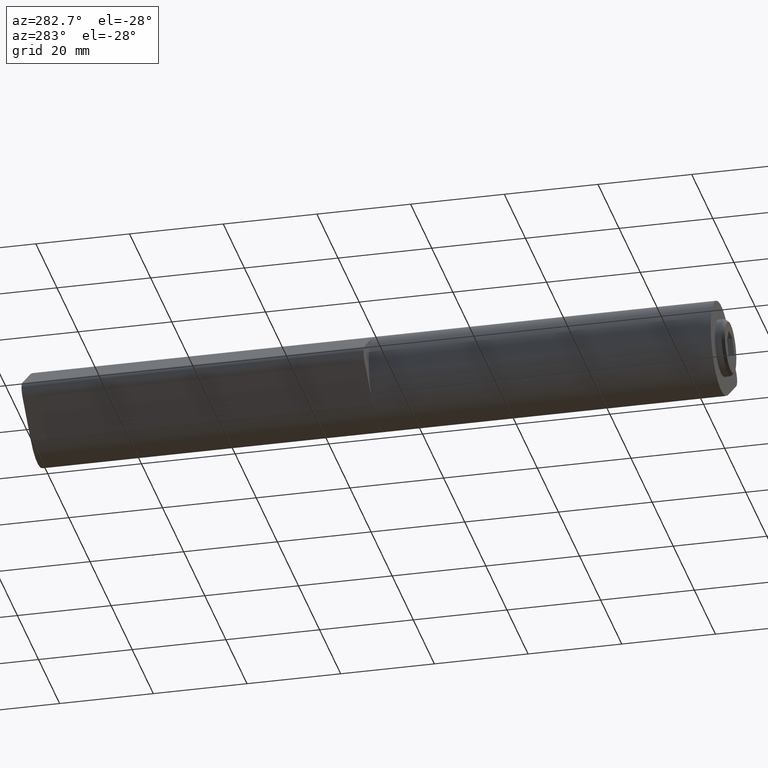
[diagram: clean part render]
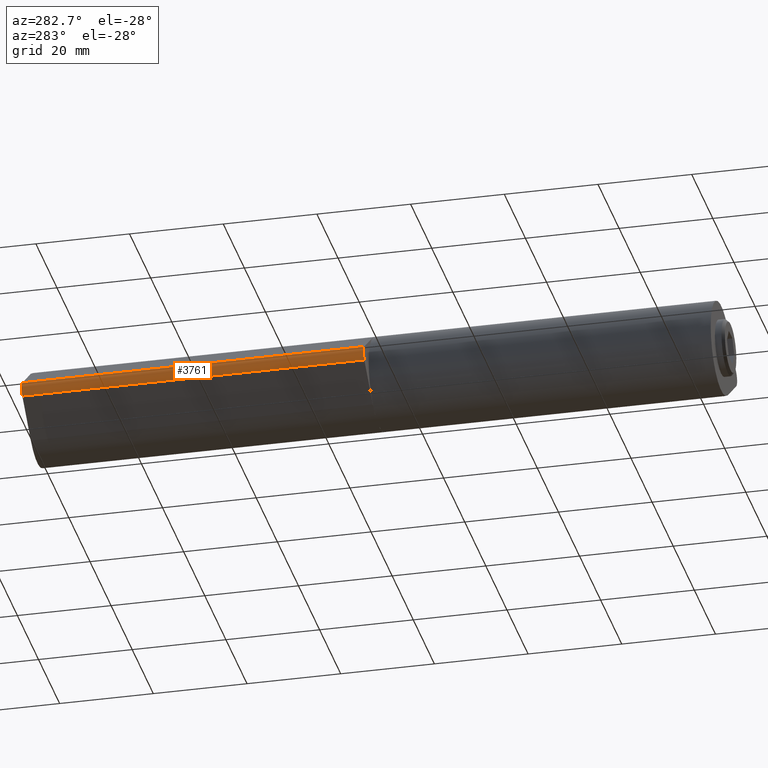
[diagram: same view with one face highlighted and labeled with its STEP entity id]
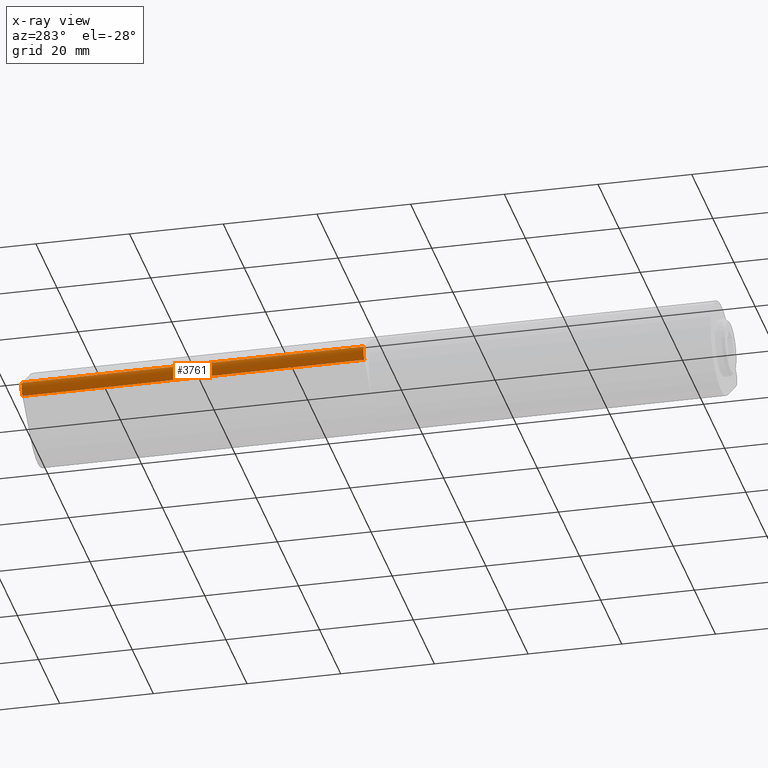
[diagram: x-ray of the same camera — body ghosted, the highlighted face saturated]
A machine part, auxiliary view. The second image highlights one B-rep face of the part: STEP entity #3761.
The next image is the same camera in x-ray: the body ghosted, the highlighted face saturated — about 0% of this face is hidden behind the body in this view.
In plain terms, the highlighted cylindrical surface (edge-blend (fillet) strip) has radius 2 mm, axis along (0, 1, -0).
Its self-contained STEP definition (entity closure, byte-faithful):
#210 = FACE_OUTER_BOUND ( 'NONE', #12930, .T. ) ;
#1305 = CARTESIAN_POINT ( 'NONE',  ( 13.00000000000000000, 36.50000000000000000, 0.000000000000000000 ) ) ;
#1350 = DIRECTION ( 'NONE',  ( 0.000000000000000000, 0.000000000000000000, 1.000000000000000000 ) ) ;
#1407 = EDGE_CURVE ( 'NONE', #6758, #12700, #3770, .T. ) ;
#1593 = AXIS2_PLACEMENT_3D ( 'NONE', #3411, #5390, #4508 ) ;
#1837 = VECTOR ( 'NONE', #6678, 1000.000000000000000 ) ;
#1932 = AXIS2_PLACEMENT_3D ( 'NONE', #1305, #12052, #1350 ) ;
#2204 = ORIENTED_EDGE ( 'NONE', *, *, #7422, .T. ) ;
#2800 = LINE ( 'NONE', #11524, #8769 ) ;
#3342 = CIRCLE ( 'NONE', #1932, 2.000000000000000888 ) ;
#3411 = CARTESIAN_POINT ( 'NONE',  ( 13.00000000000000000, -36.50000000000000000, 0.000000000000000000 ) ) ;
#3761 = ADVANCED_FACE ( 'NONE', ( #210 ), #4917, .T. ) ;
#3770 = CIRCLE ( 'NONE', #1593, 2.000000000000000888 ) ;
#4203 = CARTESIAN_POINT ( 'NONE',  ( 14.23076923076923173, 36.50000000000000000, 1.576453963993785123 ) ) ;
#4394 = VERTEX_POINT ( 'NONE', #4203 ) ;
#4508 = DIRECTION ( 'NONE',  ( 0.000000000000000000, 0.000000000000000000, 1.000000000000000000 ) ) ;
#4917 = CYLINDRICAL_SURFACE ( 'NONE', #8392, 2.000000000000000888 ) ;
#5284 = ORIENTED_EDGE ( 'NONE', *, *, #8715, .F. ) ;
#5390 = DIRECTION ( 'NONE',  ( 0.000000000000000000, 1.000000000000000000, 0.000000000000000000 ) ) ;
#6678 = DIRECTION ( 'NONE',  ( -0.000000000000000000, -1.000000000000000000, -0.000000000000000000 ) ) ;
#6758 = VERTEX_POINT ( 'NONE', #13645 ) ;
#6903 = DIRECTION ( 'NONE',  ( -0.000000000000000000, -1.000000000000000000, -0.000000000000000000 ) ) ;
#7422 = EDGE_CURVE ( 'NONE', #4394, #6758, #7594, .T. ) ;
#7594 = LINE ( 'NONE', #11117, #1837 ) ;
#7998 = CARTESIAN_POINT ( 'NONE',  ( 13.00000000000000000, 36.50000000000000000, 0.000000000000000000 ) ) ;
#8392 = AXIS2_PLACEMENT_3D ( 'NONE', #7998, #6903, #12179 ) ;
#8715 = EDGE_CURVE ( 'NONE', #4394, #10541, #3342, .T. ) ;
#8724 = ORIENTED_EDGE ( 'NONE', *, *, #1407, .T. ) ;
#8769 = VECTOR ( 'NONE', #9340, 1000.000000000000000 ) ;
#9340 = DIRECTION ( 'NONE',  ( -0.000000000000000000, -1.000000000000000000, -0.000000000000000000 ) ) ;
#9668 = CARTESIAN_POINT ( 'NONE',  ( 14.23076923076923173, -36.50000000000000000, -1.576453963993785123 ) ) ;
#10541 = VERTEX_POINT ( 'NONE', #10986 ) ;
#10942 = EDGE_CURVE ( 'NONE', #10541, #12700, #2800, .T. ) ;
#10986 = CARTESIAN_POINT ( 'NONE',  ( 14.23076923076923173, 36.50000000000000000, -1.576453963993785123 ) ) ;
#11117 = CARTESIAN_POINT ( 'NONE',  ( 14.23076923076923173, 36.50000000000000000, 1.576453963993785123 ) ) ;
#11524 = CARTESIAN_POINT ( 'NONE',  ( 14.23076923076923173, 36.50000000000000000, -1.576453963993785123 ) ) ;
#11770 = ORIENTED_EDGE ( 'NONE', *, *, #10942, .F. ) ;
#12052 = DIRECTION ( 'NONE',  ( 0.000000000000000000, 1.000000000000000000, 0.000000000000000000 ) ) ;
#12179 = DIRECTION ( 'NONE',  ( 0.000000000000000000, 0.000000000000000000, -1.000000000000000000 ) ) ;
#12700 = VERTEX_POINT ( 'NONE', #9668 ) ;
#12930 = EDGE_LOOP ( 'NONE', ( #8724, #11770, #5284, #2204 ) ) ;
#13645 = CARTESIAN_POINT ( 'NONE',  ( 14.23076923076923173, -36.50000000000000000, 1.576453963993785123 ) ) ;